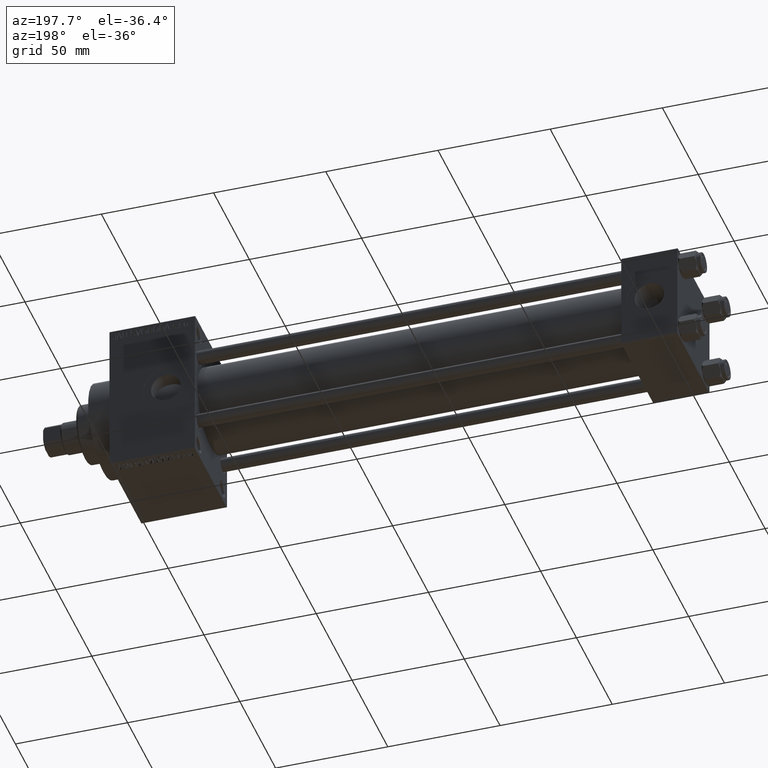
[diagram: clean part render]
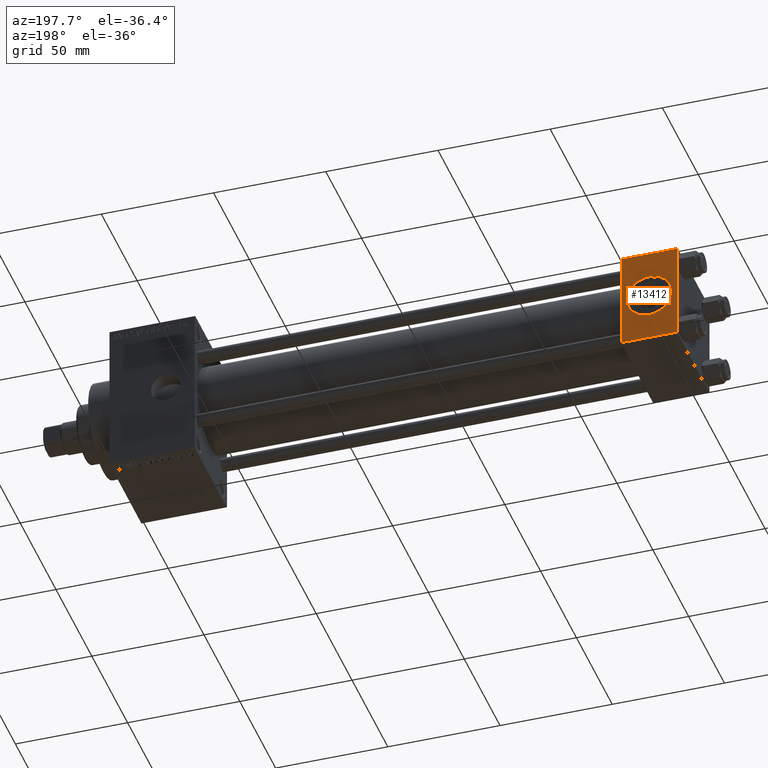
[diagram: same view with one face highlighted and labeled with its STEP entity id]
A machine part, auxiliary view. The second image highlights one B-rep face of the part: STEP entity #13412.
In plain terms, the highlighted planar face has unit normal (0, 1, 0).
Its self-contained STEP definition (entity closure, byte-faithful):
#1870 = EDGE_CURVE ( 'NONE', #2578, #5958, #28170, .T. ) ;
#2578 = VERTEX_POINT ( 'NONE', #49104 ) ;
#2929 = CARTESIAN_POINT ( 'NONE',  ( 25.00000000000000000, 22.50000000000000000, 22.50000000000000355 ) ) ;
#2986 = CIRCLE ( 'NONE', #23686, 9.999999999999996447 ) ;
#3664 = DIRECTION ( 'NONE',  ( 0.000000000000000000, -0.000000000000000000, 1.000000000000000000 ) ) ;
#5450 = CARTESIAN_POINT ( 'NONE',  ( 25.00000000000000000, 22.50000000000000000, 21.99999999999999645 ) ) ;
#5958 = VERTEX_POINT ( 'NONE', #18477 ) ;
#6376 = CARTESIAN_POINT ( 'NONE',  ( 12.50000000000000000, 22.50000000000000000, 9.999999999999996447 ) ) ;
#6675 = DIRECTION ( 'NONE',  ( -0.000000000000000000, 1.000000000000000000, 0.000000000000000000 ) ) ;
#7514 = LINE ( 'NONE', #23219, #30623 ) ;
#7735 = ORIENTED_EDGE ( 'NONE', *, *, #34424, .T. ) ;
#7866 = VERTEX_POINT ( 'NONE', #6376 ) ;
#8061 = EDGE_CURVE ( 'NONE', #35142, #7866, #2986, .T. ) ;
#8148 = VERTEX_POINT ( 'NONE', #33495 ) ;
#9607 = DIRECTION ( 'NONE',  ( 0.000000000000000000, 0.000000000000000000, -1.000000000000000000 ) ) ;
#11173 = DIRECTION ( 'NONE',  ( -1.000000000000000000, 0.000000000000000000, 0.000000000000000000 ) ) ;
#11641 = VERTEX_POINT ( 'NONE', #5450 ) ;
#13412 = ADVANCED_FACE ( 'NONE', ( #34101, #40587 ), #29364, .T. ) ;
#15278 = VECTOR ( 'NONE', #11173, 1000.000000000000000 ) ;
#15834 = CARTESIAN_POINT ( 'NONE',  ( 12.50000000000000000, 22.50000000000000000, 0.000000000000000000 ) ) ;
#17702 = AXIS2_PLACEMENT_3D ( 'NONE', #40249, #17806, #33033 ) ;
#17806 = DIRECTION ( 'NONE',  ( 0.000000000000000000, 1.000000000000000000, 0.000000000000000000 ) ) ;
#18477 = CARTESIAN_POINT ( 'NONE',  ( 0.000000000000000000, 22.50000000000000000, -21.99999999999996803 ) ) ;
#22396 = LINE ( 'NONE', #34368, #15278 ) ;
#23219 = CARTESIAN_POINT ( 'NONE',  ( 25.00000000000000000, 22.50000000000000000, 21.99999999999999645 ) ) ;
#23686 = AXIS2_PLACEMENT_3D ( 'NONE', #15834, #34788, #46479 ) ;
#23810 = ORIENTED_EDGE ( 'NONE', *, *, #47654, .F. ) ;
#24733 = EDGE_CURVE ( 'NONE', #8148, #5958, #22396, .T. ) ;
#25159 = DIRECTION ( 'NONE',  ( 0.000000000000000000, 0.000000000000000000, -1.000000000000000000 ) ) ;
#25400 = EDGE_LOOP ( 'NONE', ( #23810, #35352 ) ) ;
#27538 = EDGE_LOOP ( 'NONE', ( #28308, #29547, #40503, #7735 ) ) ;
#28170 = LINE ( 'NONE', #47330, #44272 ) ;
#28308 = ORIENTED_EDGE ( 'NONE', *, *, #30913, .T. ) ;
#29364 = PLANE ( 'NONE',  #45235 ) ;
#29547 = ORIENTED_EDGE ( 'NONE', *, *, #24733, .T. ) ;
#30590 = VECTOR ( 'NONE', #9607, 1000.000000000000000 ) ;
#30623 = VECTOR ( 'NONE', #41410, 1000.000000000000000 ) ;
#30697 = CARTESIAN_POINT ( 'NONE',  ( 12.50000000000000178, 22.50000000000000000, -9.999999999999996447 ) ) ;
#30913 = EDGE_CURVE ( 'NONE', #11641, #8148, #43762, .T. ) ;
#33033 = DIRECTION ( 'NONE',  ( 0.000000000000000000, 0.000000000000000000, 1.000000000000000000 ) ) ;
#33495 = CARTESIAN_POINT ( 'NONE',  ( 25.00000000000000000, 22.50000000000000000, -21.99999999999996803 ) ) ;
#34101 = FACE_BOUND ( 'NONE', #25400, .T. ) ;
#34368 = CARTESIAN_POINT ( 'NONE',  ( 25.00000000000000000, 22.50000000000000000, -21.99999999999998224 ) ) ;
#34424 = EDGE_CURVE ( 'NONE', #2578, #11641, #7514, .T. ) ;
#34439 = CIRCLE ( 'NONE', #17702, 9.999999999999996447 ) ;
#34788 = DIRECTION ( 'NONE',  ( 0.000000000000000000, 1.000000000000000000, 0.000000000000000000 ) ) ;
#35142 = VERTEX_POINT ( 'NONE', #30697 ) ;
#35352 = ORIENTED_EDGE ( 'NONE', *, *, #8061, .F. ) ;
#39292 = CARTESIAN_POINT ( 'NONE',  ( 25.00000000000000000, 22.50000000000000000, 22.50000000000000355 ) ) ;
#40249 = CARTESIAN_POINT ( 'NONE',  ( 12.50000000000000000, 22.50000000000000000, 0.000000000000000000 ) ) ;
#40503 = ORIENTED_EDGE ( 'NONE', *, *, #1870, .F. ) ;
#40587 = FACE_OUTER_BOUND ( 'NONE', #27538, .T. ) ;
#41410 = DIRECTION ( 'NONE',  ( 1.000000000000000000, 0.000000000000000000, 0.000000000000000000 ) ) ;
#43762 = LINE ( 'NONE', #39292, #30590 ) ;
#44272 = VECTOR ( 'NONE', #25159, 1000.000000000000000 ) ;
#45235 = AXIS2_PLACEMENT_3D ( 'NONE', #2929, #6675, #3664 ) ;
#46479 = DIRECTION ( 'NONE',  ( 0.000000000000000000, 0.000000000000000000, 1.000000000000000000 ) ) ;
#47330 = CARTESIAN_POINT ( 'NONE',  ( 0.000000000000000000, 22.50000000000000000, 22.50000000000000355 ) ) ;
#47654 = EDGE_CURVE ( 'NONE', #7866, #35142, #34439, .T. ) ;
#49104 = CARTESIAN_POINT ( 'NONE',  ( 0.000000000000000000, 22.50000000000000000, 21.99999999999999645 ) ) ;